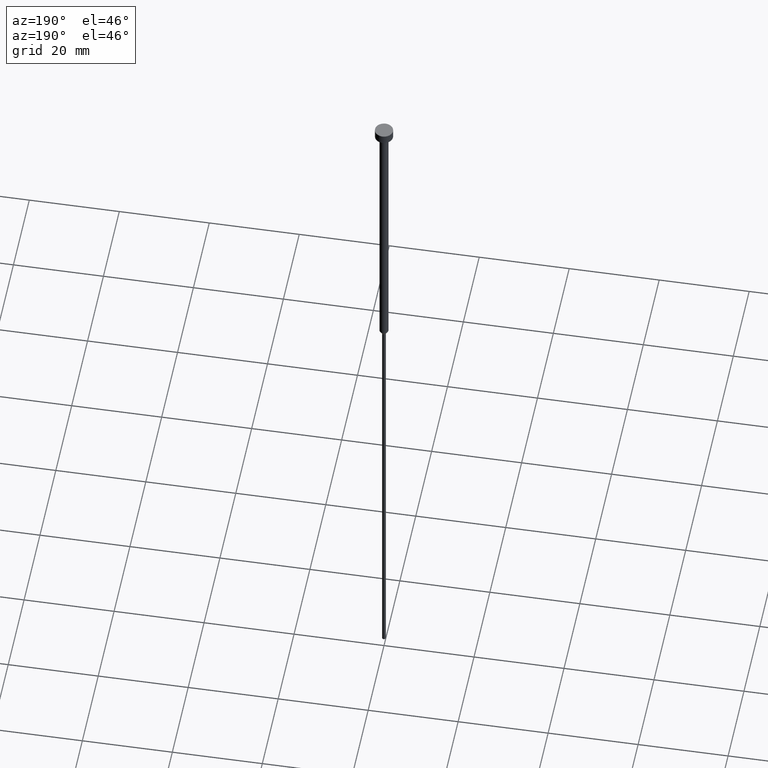
[diagram: clean part render]
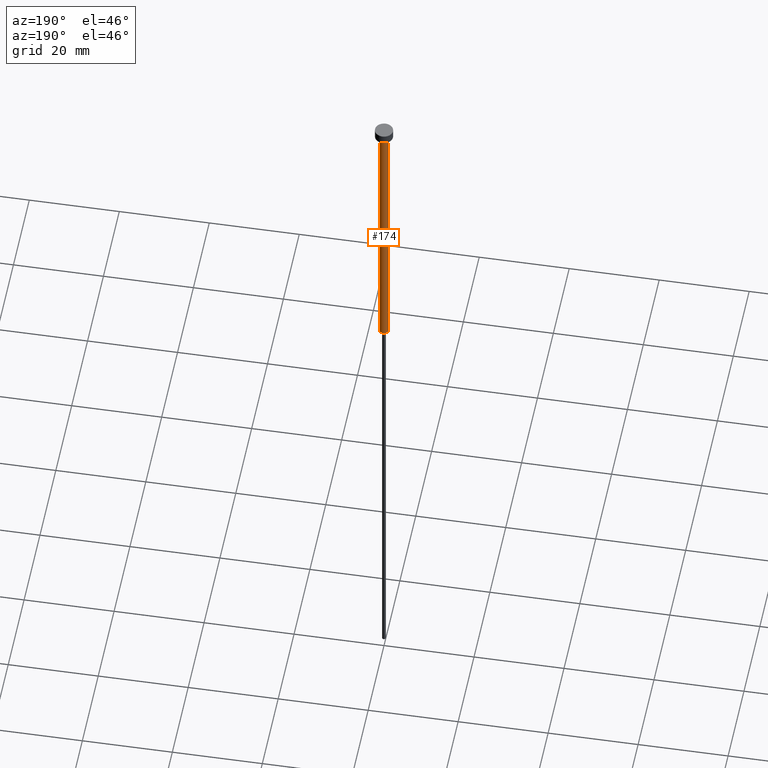
[diagram: same view with one face highlighted and labeled with its STEP entity id]
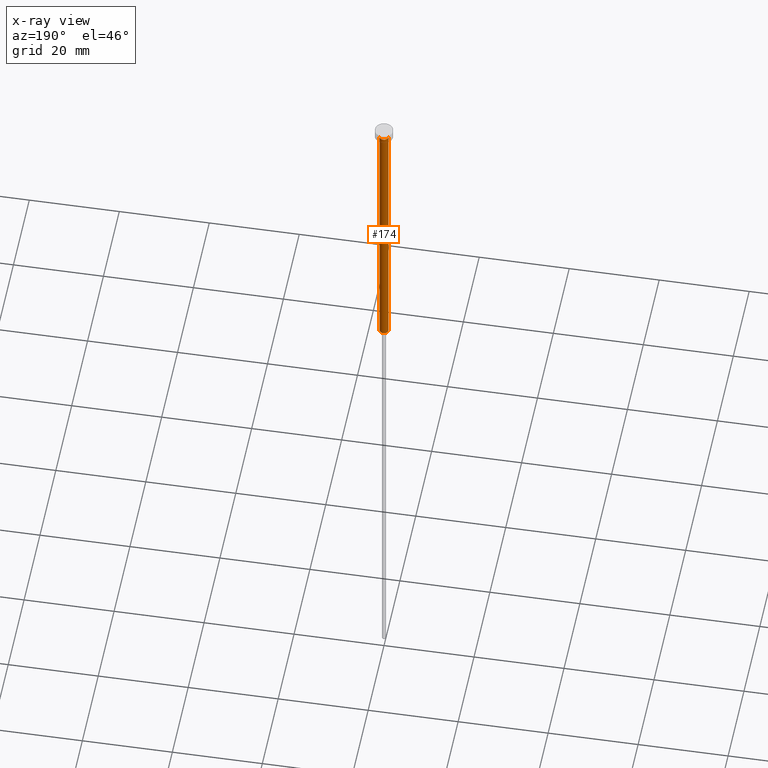
[diagram: x-ray of the same camera — body ghosted, the highlighted face saturated]
A machine part, auxiliary view. The second image highlights one B-rep face of the part: STEP entity #174.
The next image is the same camera in x-ray: the body ghosted, the highlighted face saturated — about 0% of this face is hidden behind the body in this view.
In plain terms, the highlighted cylindrical surface (edge-blend (fillet) strip) has radius 1 mm, axis along (-0, -0, 1).
Its self-contained STEP definition (entity closure, byte-faithful):
#2 = ORIENTED_EDGE ( 'NONE', *, *, #99, .T. ) ;
#8 = FACE_OUTER_BOUND ( 'NONE', #24, .T. ) ;
#17 = CARTESIAN_POINT ( 'NONE',  ( 1.000000000000003553, 0.000000000000000000, -2.000000000000000444 ) ) ;
#24 = EDGE_LOOP ( 'NONE', ( #2, #196, #221, #266 ) ) ;
#34 = EDGE_CURVE ( 'NONE', #198, #271, #148, .T. ) ;
#41 = LINE ( 'NONE', #152, #108 ) ;
#52 = DIRECTION ( 'NONE',  ( 1.000000000000000000, 0.000000000000000000, 0.000000000000000000 ) ) ;
#54 = DIRECTION ( 'NONE',  ( -0.000000000000000000, -0.000000000000000000, 1.000000000000000000 ) ) ;
#61 = DIRECTION ( 'NONE',  ( -0.000000000000000000, -0.000000000000000000, 1.000000000000000000 ) ) ;
#75 = CARTESIAN_POINT ( 'NONE',  ( 0.000000000000000000, 0.000000000000000000, -63.00000000000000000 ) ) ;
#99 = EDGE_CURVE ( 'NONE', #147, #242, #260, .T. ) ;
#108 = VECTOR ( 'NONE', #294, 1000.000000000000000 ) ;
#117 = CARTESIAN_POINT ( 'NONE',  ( 1.000000000000003109, 0.000000000000000000, -63.00000000000000000 ) ) ;
#125 = CARTESIAN_POINT ( 'NONE',  ( -1.000000000000003553, 1.224646799147357398E-16, -2.000000000000000444 ) ) ;
#131 = LINE ( 'NONE', #284, #264 ) ;
#145 = CARTESIAN_POINT ( 'NONE',  ( 0.000000000000000000, 0.000000000000000000, 0.000000000000000000 ) ) ;
#147 = VERTEX_POINT ( 'NONE', #117 ) ;
#148 = CIRCLE ( 'NONE', #227, 1.000000000000003553 ) ;
#152 = CARTESIAN_POINT ( 'NONE',  ( 1.000000000000003331, 0.000000000000000000, 0.000000000000000000 ) ) ;
#159 = DIRECTION ( 'NONE',  ( -0.000000000000000000, -0.000000000000000000, 1.000000000000000000 ) ) ;
#160 = EDGE_CURVE ( 'NONE', #147, #198, #41, .T. ) ;
#174 = ADVANCED_FACE ( 'NONE', ( #8 ), #202, .T. ) ;
#187 = DIRECTION ( 'NONE',  ( -0.000000000000000000, -0.000000000000000000, 1.000000000000000000 ) ) ;
#196 = ORIENTED_EDGE ( 'NONE', *, *, #314, .T. ) ;
#198 = VERTEX_POINT ( 'NONE', #17 ) ;
#202 = CYLINDRICAL_SURFACE ( 'NONE', #337, 1.000000000000003331 ) ;
#221 = ORIENTED_EDGE ( 'NONE', *, *, #34, .F. ) ;
#227 = AXIS2_PLACEMENT_3D ( 'NONE', #232, #159, #254 ) ;
#232 = CARTESIAN_POINT ( 'NONE',  ( 0.000000000000000000, 0.000000000000000000, -2.000000000000000444 ) ) ;
#242 = VERTEX_POINT ( 'NONE', #277 ) ;
#252 = DIRECTION ( 'NONE',  ( 1.000000000000000000, 0.000000000000000000, 0.000000000000000000 ) ) ;
#254 = DIRECTION ( 'NONE',  ( 1.000000000000000000, 0.000000000000000000, 0.000000000000000000 ) ) ;
#260 = CIRCLE ( 'NONE', #355, 1.000000000000003109 ) ;
#264 = VECTOR ( 'NONE', #54, 1000.000000000000000 ) ;
#266 = ORIENTED_EDGE ( 'NONE', *, *, #160, .F. ) ;
#271 = VERTEX_POINT ( 'NONE', #125 ) ;
#277 = CARTESIAN_POINT ( 'NONE',  ( -1.000000000000003109, 1.224646799147356905E-16, -63.00000000000000000 ) ) ;
#284 = CARTESIAN_POINT ( 'NONE',  ( -1.000000000000003331, 1.224646799147357151E-16, 0.000000000000000000 ) ) ;
#294 = DIRECTION ( 'NONE',  ( -0.000000000000000000, -0.000000000000000000, 1.000000000000000000 ) ) ;
#314 = EDGE_CURVE ( 'NONE', #242, #271, #131, .T. ) ;
#337 = AXIS2_PLACEMENT_3D ( 'NONE', #145, #61, #52 ) ;
#355 = AXIS2_PLACEMENT_3D ( 'NONE', #75, #187, #252 ) ;